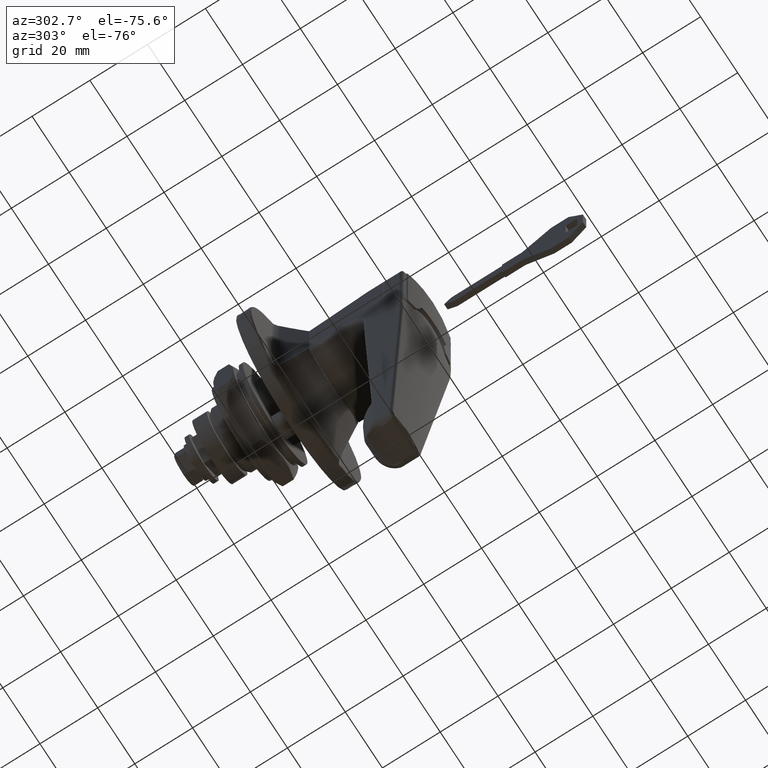
[diagram: clean part render]
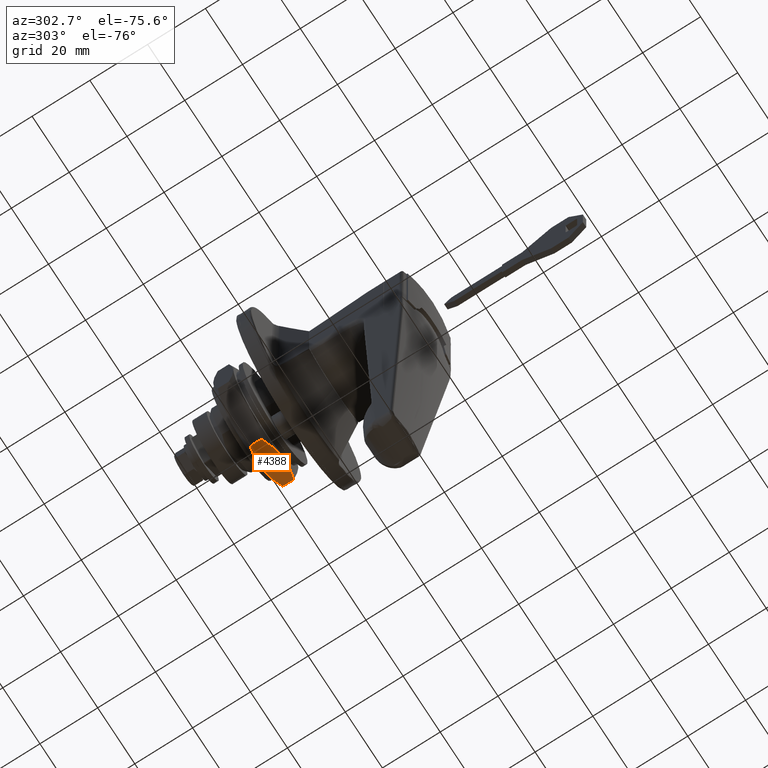
[diagram: same view with one face highlighted and labeled with its STEP entity id]
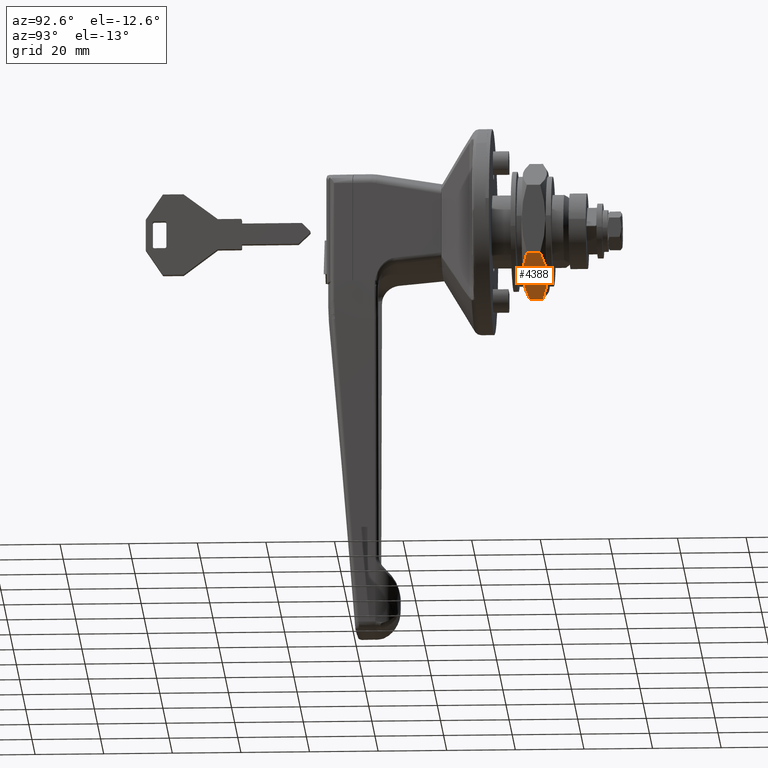
[diagram: same view with one face highlighted and labeled with its STEP entity id]
A machine part, auxiliary view. The second image highlights one B-rep face of the part: STEP entity #4388.
A second angle (auxiliary view) of the same face is appended — the face is thin or edge-on in the first view.
In plain terms, the highlighted face is a freeform B-spline surface patch.
Its self-contained STEP definition (entity closure, byte-faithful):
#3807=CARTESIAN_POINT('',(53.967903000000000,-8.749999538309909,-15.155444832784649));
#3808=VERTEX_POINT('',#3807);
#3822=CARTESIAN_POINT('',(55.530939769697902,-17.499999999999751,-10.103630069754500));
#3823=VERTEX_POINT('',#3822);
#3824=CARTESIAN_POINT('',(55.530939769697902,-17.499999999999751,-10.103630069754500));
#3825=CARTESIAN_POINT('',(55.054703401796651,-16.071290643623449,-10.928495743220500));
#3826=CARTESIAN_POINT('',(54.662198490747507,-14.632165165839080,-11.759375166762281));
#3827=CARTESIAN_POINT('',(54.254388494894130,-12.450967251460460,-13.018690281188301));
#3828=CARTESIAN_POINT('',(54.148682043427037,-11.720140667333320,-13.440633176580169));
#3829=CARTESIAN_POINT('',(54.005686440070697,-10.249976445699531,-14.289432825977981));
#3830=CARTESIAN_POINT('',(53.968456407543151,-9.510631453794975,-14.716293826047210));
#3831=CARTESIAN_POINT('',(53.967905052401051,-8.761148872215564,-15.149007765832391));
#3832=CARTESIAN_POINT('',(53.967903002444132,-8.755574333557586,-15.152226227000750));
#3833=CARTESIAN_POINT('',(53.967903000000000,-8.749999538309909,-15.155444832784649));
#3834=B_SPLINE_CURVE_WITH_KNOTS('',3,(#3824,#3825,#3826,#3827,#3828,#3829,#3830,#3831,#3832,#3833),.UNSPECIFIED.,.F.,.U.,(4,2,2,2,4),(0.0,0.250000000000000,0.375000000000000,0.499999999999999,0.500936655022017),.UNSPECIFIED.);
#3835=EDGE_CURVE('',#3823,#3808,#3834,.T.);
#3867=CARTESIAN_POINT('',(55.530939462922703,0.0,-20.207259069754400));
#3868=VERTEX_POINT('',#3867);
#3869=CARTESIAN_POINT('',(53.967903000000000,-8.749999538309909,-15.155444832784649));
#3870=CARTESIAN_POINT('',(53.967903043925382,-8.569580234133531,-15.259609962816169));
#3871=CARTESIAN_POINT('',(53.970051490536697,-8.388893669015046,-15.363929392487121));
#3872=CARTESIAN_POINT('',(53.978808818922509,-8.021390870669062,-15.576107217112810));
#3873=CARTESIAN_POINT('',(53.985549967238370,-7.834857690626853,-15.683802191246340));
#3874=CARTESIAN_POINT('',(54.012519301698923,-7.276641946704928,-16.006088178591831));
#3875=CARTESIAN_POINT('',(54.039512165587801,-6.905791081170655,-16.220199010573960));
#3876=CARTESIAN_POINT('',(54.146360446740367,-5.796949505227915,-16.860388947893998));
#3877=CARTESIAN_POINT('',(54.252146035312727,-5.062678491629032,-17.284320485428690));
#3878=CARTESIAN_POINT('',(54.660632976677682,-2.872938122801217,-18.548567587883522));
#3879=CARTESIAN_POINT('',(55.054109417521012,-1.430490502037220,-19.381365051433939));
#3880=CARTESIAN_POINT('',(55.530939462922703,0.0,-20.207259069754400));
#3881=B_SPLINE_CURVE_WITH_KNOTS('',3,(#3869,#3870,#3871,#3872,#3873,#3874,#3875,#3876,#3877,#3878,#3879,#3880),.UNSPECIFIED.,.F.,.U.,(4,2,2,2,2,4),(0.500936655043860,0.531249999999999,0.562500000000000,0.624999999999999,0.750000000000000,1.0),.UNSPECIFIED.);
#3882=EDGE_CURVE('',#3808,#3868,#3881,.T.);
#4183=CARTESIAN_POINT('',(60.967903000000092,-8.749999539836990,-15.155444835429600));
#4184=VERTEX_POINT('',#4183);
#4198=CARTESIAN_POINT('',(59.404866537077403,-1.442082E-015,-20.207259069754400));
#4199=VERTEX_POINT('',#4198);
#4200=CARTESIAN_POINT('',(59.404866537077403,-1.442082E-015,-20.207259069754400));
#4201=CARTESIAN_POINT('',(59.881102870558330,-1.428709365819168,-19.382393390836530));
#4202=CARTESIAN_POINT('',(60.273607738167968,-2.867834852207868,-18.551513962327050));
#4203=CARTESIAN_POINT('',(60.681417655740262,-5.049032776888508,-17.292198841953141));
#4204=CARTESIAN_POINT('',(60.787124079005672,-5.779859364004048,-16.870255944835922));
#4205=CARTESIAN_POINT('',(60.930119623084209,-7.250023590370288,-16.021456292705832));
#4206=CARTESIAN_POINT('',(60.967349624545442,-7.989368584016261,-15.594595291631190));
#4207=CARTESIAN_POINT('',(60.967900947834252,-8.738850846860496,-15.161881535867840));
#4208=CARTESIAN_POINT('',(60.967902997556052,-8.744425065832074,-15.158663259270490));
#4209=CARTESIAN_POINT('',(60.967903000000092,-8.749999539836990,-15.155444835429600));
#4210=B_SPLINE_CURVE_WITH_KNOTS('',3,(#4200,#4201,#4202,#4203,#4204,#4205,#4206,#4207,#4208,#4209),.UNSPECIFIED.,.F.,.U.,(4,2,2,2,4),(0.0,0.250000000000000,0.375000000000000,0.500000000000000,0.500936601308408),.UNSPECIFIED.);
#4211=EDGE_CURVE('',#4199,#4184,#4210,.T.);
#4245=CARTESIAN_POINT('',(59.404866230302197,-17.499999999999751,-10.103630069754500));
#4246=VERTEX_POINT('',#4245);
#4247=CARTESIAN_POINT('',(60.967903000000092,-8.749999539836990,-15.155444835429600));
#4248=CARTESIAN_POINT('',(60.967902956076948,-8.930419164507132,-15.051279523887500));
#4249=CARTESIAN_POINT('',(60.965754501864247,-9.111106049487884,-14.946959909544020));
#4250=CARTESIAN_POINT('',(60.956997150348833,-9.478609168724361,-14.734781899652109));
#4251=CARTESIAN_POINT('',(60.950255994214437,-9.665142348005178,-14.627086925958180));
#4252=CARTESIAN_POINT('',(60.923286636476362,-10.223358090428970,-14.304800939477641));
#4253=CARTESIAN_POINT('',(60.896293757306687,-10.594208954792110,-14.090690108171669));
#4254=CARTESIAN_POINT('',(60.789445431406648,-11.703050526785971,-13.450500173131511));
#4255=CARTESIAN_POINT('',(60.683659814495243,-12.437321537174940,-13.026568637450060));
#4256=CARTESIAN_POINT('',(60.275172794551352,-14.627061895209239,-11.762321541226880));
#4257=CARTESIAN_POINT('',(59.881696310213513,-16.069509507278031,-10.929524082696640));
#4258=CARTESIAN_POINT('',(59.404866230302197,-17.499999999999751,-10.103630069754500));
#4259=B_SPLINE_CURVE_WITH_KNOTS('',3,(#4247,#4248,#4249,#4250,#4251,#4252,#4253,#4254,#4255,#4256,#4257,#4258),.UNSPECIFIED.,.F.,.U.,(4,2,2,2,2,4),(0.500936601330251,0.531250000000000,0.562500000000000,0.625000000000000,0.750000000000000,1.0),.UNSPECIFIED.);
#4260=EDGE_CURVE('',#4184,#4246,#4259,.T.);
#4367=CARTESIAN_POINT('',(53.618253144989332,-18.374124903559050,-9.598953856884556));
#4368=CARTESIAN_POINT('',(53.618253144989332,0.874124121248350,-20.711934830956910));
#4369=CARTESIAN_POINT('',(61.317553167935152,-18.374124903559050,-9.598953856884556));
#4370=CARTESIAN_POINT('',(61.317553167935152,0.874124121248350,-20.711934830956910));
#4371=B_SPLINE_SURFACE_WITH_KNOTS('',1,1,((#4367,#4369),(#4368,#4370)),.UNSPECIFIED.,.F.,.F.,.U.,(2,2),(2,2),(0.0,22.225963120888441),(0.0,7.699300022945814),.UNSPECIFIED.);
#4372=CARTESIAN_POINT('',(55.530939769697902,-17.499999999999751,-10.103630069754500));
#4373=CARTESIAN_POINT('',(59.404866230302197,-17.499999999999751,-10.103630069754500));
#4374=QUASI_UNIFORM_CURVE('',1,(#4372,#4373),.UNSPECIFIED.,.F.,.U.);
#4375=EDGE_CURVE('',#3823,#4246,#4374,.T.);
#4376=ORIENTED_EDGE('',*,*,#4375,.F.);
#4377=ORIENTED_EDGE('',*,*,#3835,.T.);
#4378=ORIENTED_EDGE('',*,*,#3882,.T.);
#4379=CARTESIAN_POINT('',(55.530939462922703,0.0,-20.207259069754400));
#4380=CARTESIAN_POINT('',(59.404866537077403,-1.442082E-015,-20.207259069754400));
#4381=QUASI_UNIFORM_CURVE('',1,(#4379,#4380),.UNSPECIFIED.,.F.,.U.);
#4382=EDGE_CURVE('',#3868,#4199,#4381,.T.);
#4383=ORIENTED_EDGE('',*,*,#4382,.T.);
#4384=ORIENTED_EDGE('',*,*,#4211,.T.);
#4385=ORIENTED_EDGE('',*,*,#4260,.T.);
#4386=EDGE_LOOP('',(#4376,#4377,#4378,#4383,#4384,#4385));
#4387=FACE_OUTER_BOUND('',#4386,.T.);
#4388=ADVANCED_FACE('',(#4387),#4371,.T.);